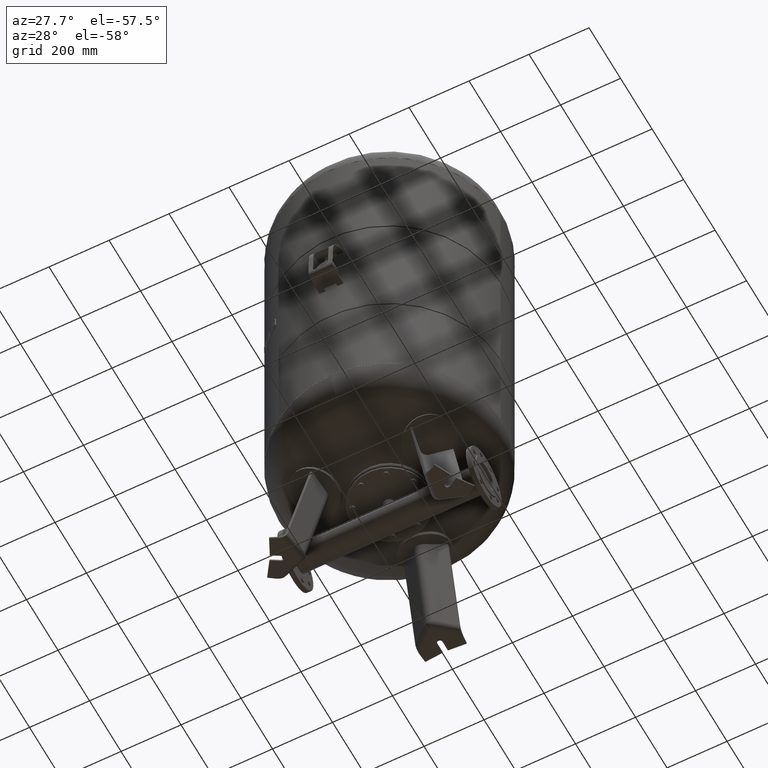
[diagram: clean part render]
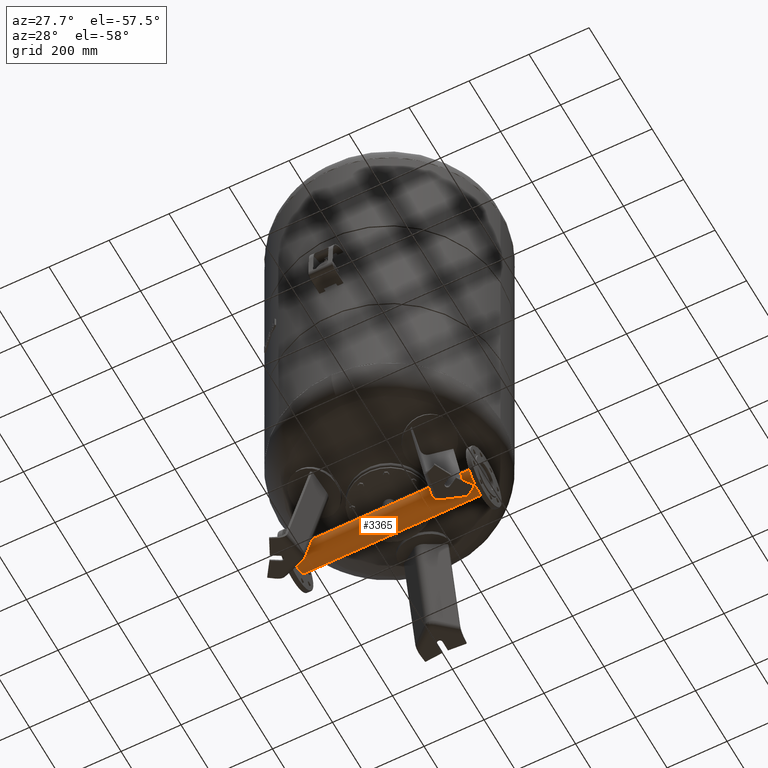
[diagram: same view with one face highlighted and labeled with its STEP entity id]
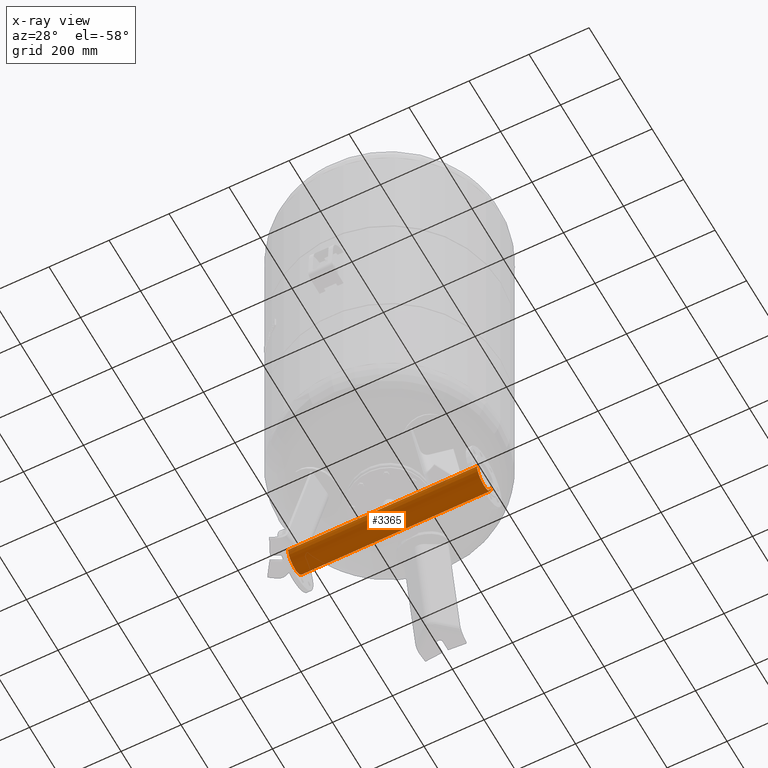
[diagram: x-ray of the same camera — body ghosted, the highlighted face saturated]
A machine part, auxiliary view. The second image highlights one B-rep face of the part: STEP entity #3365.
The next image is the same camera in x-ray: the body ghosted, the highlighted face saturated — about 2% of this face is hidden behind the body in this view.
In plain terms, the highlighted face is a freeform B-spline surface patch.
Its self-contained STEP definition (entity closure, byte-faithful):
#3061=CARTESIAN_POINT('',(315.0,-44.450000000000003,235.0));
#3062=VERTEX_POINT('',#3061);
#3063=CARTESIAN_POINT('',(-315.0,-44.450000000000003,235.0));
#3064=VERTEX_POINT('',#3063);
#3065=CARTESIAN_POINT('',(315.0,-44.450000000000003,235.0));
#3066=DIRECTION('',(-1.0,0.0,0.0));
#3067=VECTOR('',#3066,630.0);
#3068=LINE('',#3065,#3067);
#3069=EDGE_CURVE('',#3062,#3064,#3068,.T.);
#3071=CARTESIAN_POINT('',(315.0,44.450000000000003,235.0));
#3072=VERTEX_POINT('',#3071);
#3080=CARTESIAN_POINT('',(-315.0,44.450000000000003,235.0));
#3081=VERTEX_POINT('',#3080);
#3082=CARTESIAN_POINT('',(315.0,44.450000000000003,235.0));
#3083=DIRECTION('',(-1.0,0.0,0.0));
#3084=VECTOR('',#3083,630.0);
#3085=LINE('',#3082,#3084);
#3086=EDGE_CURVE('',#3072,#3081,#3085,.T.);
#3287=CARTESIAN_POINT('',(-315.0,0.0,235.0));
#3288=DIRECTION('',(-1.0,0.0,0.0));
#3289=DIRECTION('',(0.0,-1.0,0.0));
#3290=AXIS2_PLACEMENT_3D('',#3287,#3288,#3289);
#3291=CIRCLE('',#3290,44.450000000000003);
#3292=EDGE_CURVE('',#3081,#3064,#3291,.T.);
#3327=CARTESIAN_POINT('',(-315.0,44.450000000000003,235.0));
#3328=CARTESIAN_POINT('',(315.0,44.450000000000003,235.0));
#3329=CARTESIAN_POINT('',(-315.0,44.449999999999996,190.550000000000040));
#3330=CARTESIAN_POINT('',(315.0,44.449999999999996,190.550000000000040));
#3331=CARTESIAN_POINT('',(-315.0,0.0,190.550000000000010));
#3332=CARTESIAN_POINT('',(315.0,0.0,190.550000000000010));
#3333=CARTESIAN_POINT('',(-315.0,-44.449999999999996,190.550000000000040));
#3334=CARTESIAN_POINT('',(315.0,-44.449999999999996,190.550000000000040));
#3335=CARTESIAN_POINT('',(-315.0,-44.450000000000003,235.0));
#3336=CARTESIAN_POINT('',(315.0,-44.450000000000003,235.0));
#3337=CARTESIAN_POINT('',(-315.0,-44.449999999999996,279.449999999999990));
#3338=CARTESIAN_POINT('',(315.0,-44.449999999999996,279.449999999999990));
#3339=CARTESIAN_POINT('',(-315.0,0.0,279.449999999999990));
#3340=CARTESIAN_POINT('',(315.0,0.0,279.449999999999990));
#3341=CARTESIAN_POINT('',(-315.0,44.449999999999996,279.449999999999990));
#3342=CARTESIAN_POINT('',(315.0,44.449999999999996,279.449999999999990));
#3343=CARTESIAN_POINT('',(-315.0,44.450000000000003,235.0));
#3344=CARTESIAN_POINT('',(315.0,44.450000000000003,235.0));
#3352=(BOUNDED_SURFACE()B_SPLINE_SURFACE(1,2,((#3327,#3329,#3331,#3333,#3335,#3337,#3339,#3341,#3343),(#3328,#3330,#3332,#3334,#3336,#3338,#3340,#3342,#3344)),.UNSPECIFIED.,.F.,.T.,.U.)B_SPLINE_SURFACE_WITH_KNOTS((2,2),(3,2,2,2,3),(-13.892013498312711,0.281214848143982),(0.0,69.821896726033160,139.643793452066320,209.465690178099460,279.287586904132640),.UNSPECIFIED.)GEOMETRIC_REPRESENTATION_ITEM()RATIONAL_B_SPLINE_SURFACE(((1.0,0.707106781186548,1.0,0.707106781186548,1.0,0.707106781186548,1.0,0.707106781186548,1.0),(1.0,0.707106781186548,1.0,0.707106781186548,1.0,0.707106781186548,1.0,0.707106781186548,1.0)))REPRESENTATION_ITEM('')SURFACE());
#3353=ORIENTED_EDGE('',*,*,#3069,.T.);
#3354=ORIENTED_EDGE('',*,*,#3292,.F.);
#3355=ORIENTED_EDGE('',*,*,#3086,.F.);
#3356=CARTESIAN_POINT('',(315.0,0.0,235.0));
#3357=DIRECTION('',(-1.0,0.0,0.0));
#3358=DIRECTION('',(0.0,-1.0,0.0));
#3359=AXIS2_PLACEMENT_3D('',#3356,#3357,#3358);
#3360=CIRCLE('',#3359,44.450000000000003);
#3361=EDGE_CURVE('',#3072,#3062,#3360,.T.);
#3362=ORIENTED_EDGE('',*,*,#3361,.T.);
#3363=EDGE_LOOP('',(#3353,#3354,#3355,#3362));
#3364=FACE_OUTER_BOUND('',#3363,.T.);
#3365=ADVANCED_FACE('',(#3364),#3352,.T.);